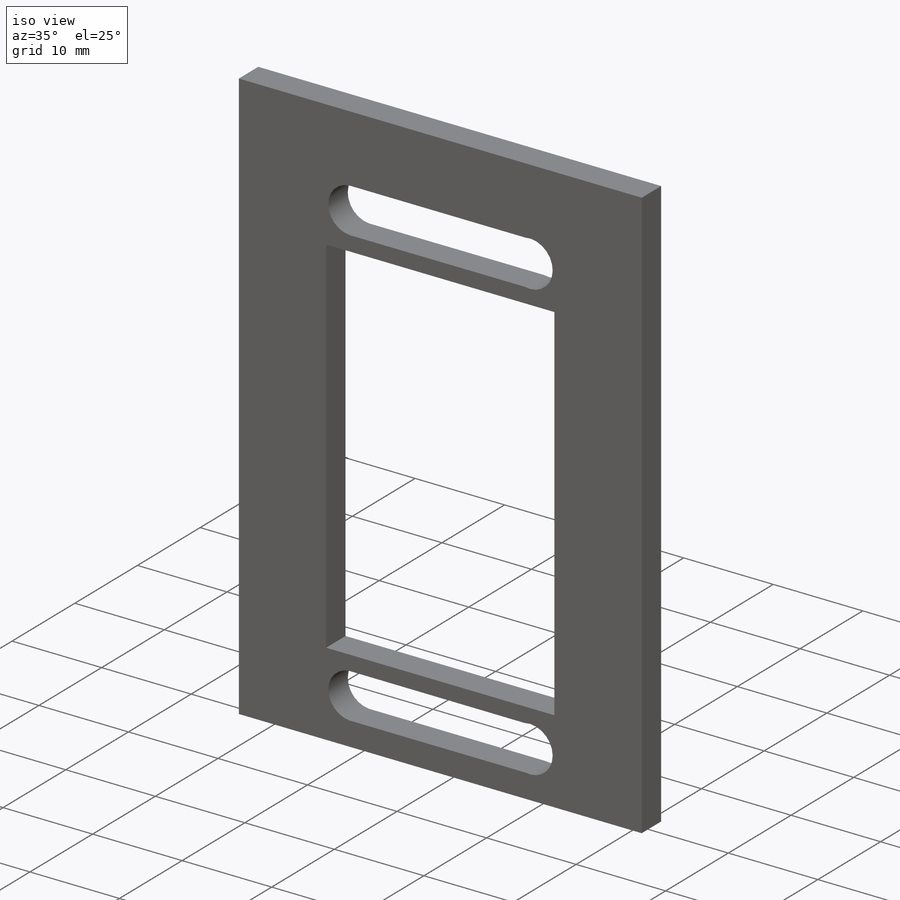
[diagram: iso view]
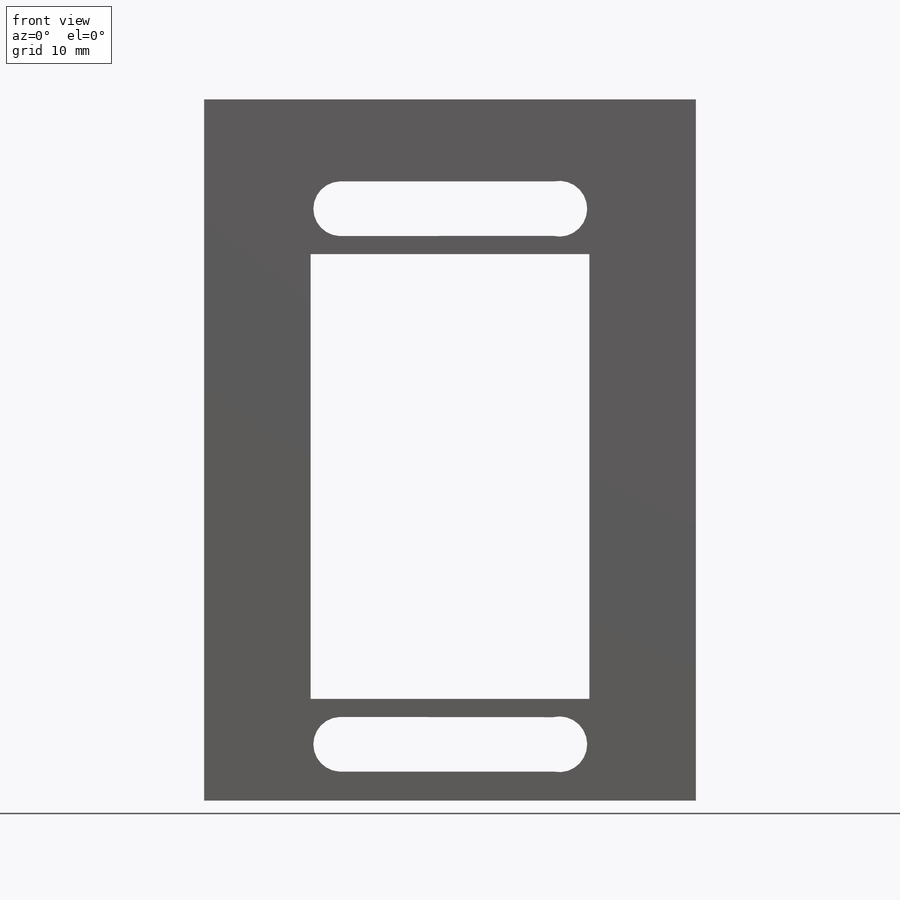
[diagram: front view]
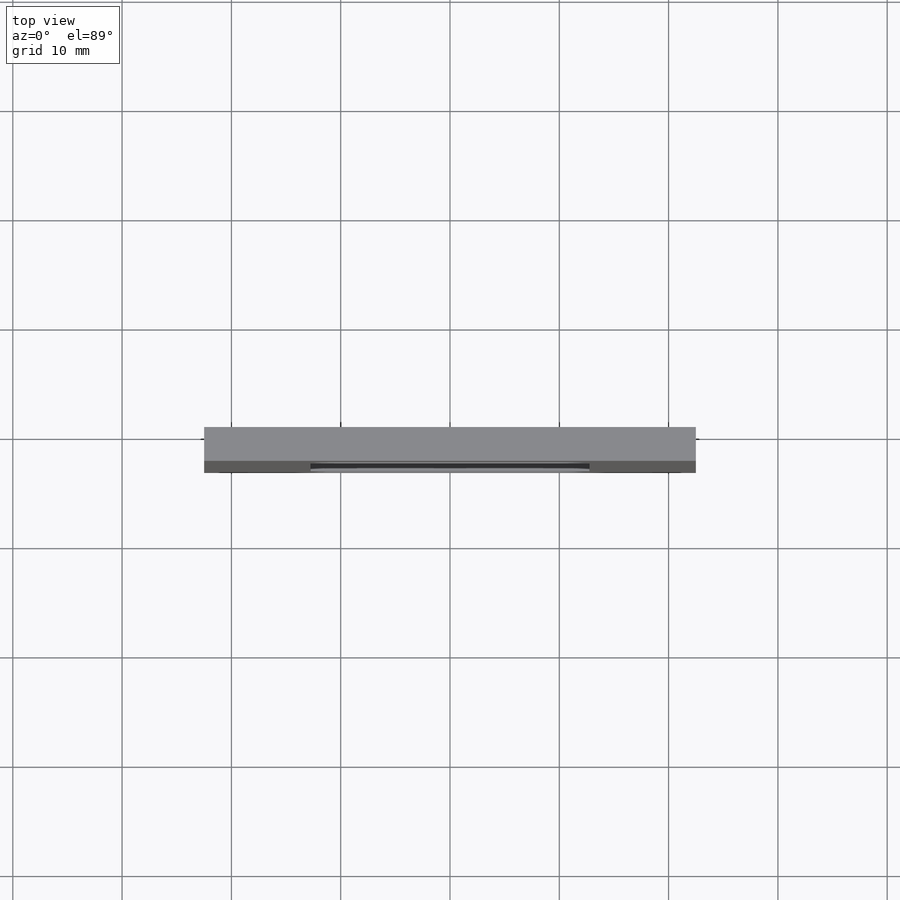
[diagram: top view]
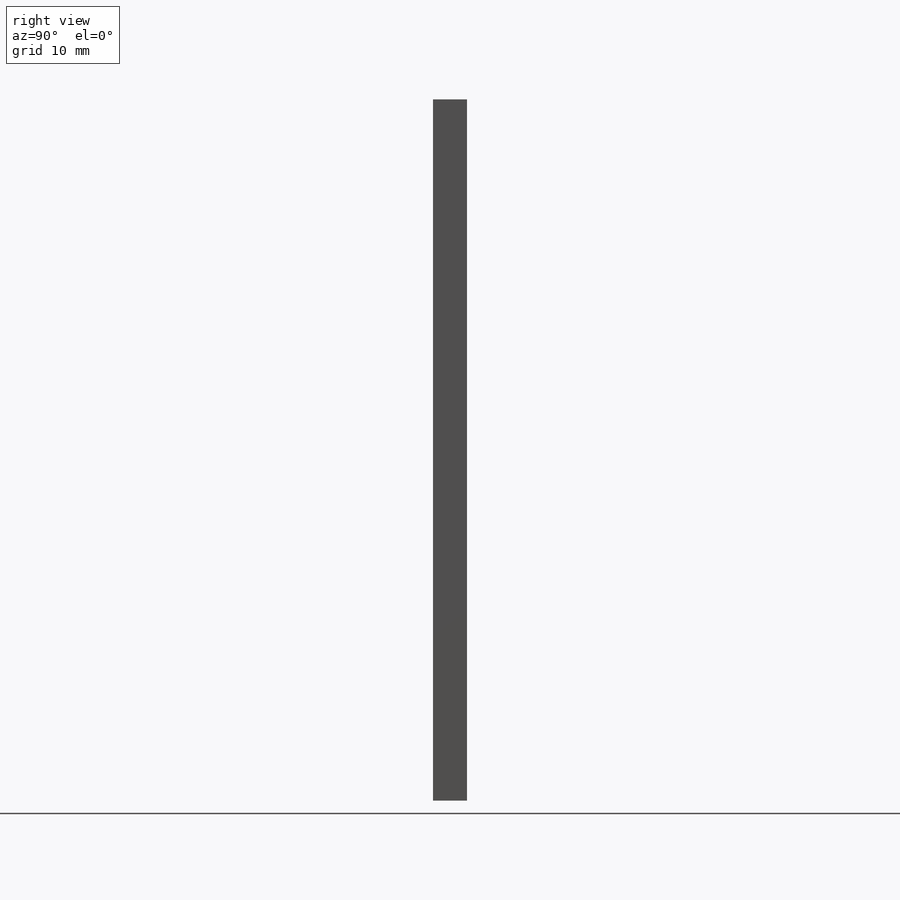
[diagram: right view]
SOLIDWORKS PART (.sldprt)
format: sldprt  version: not decoded by parser v0  size: 598,528 bytes
history: native  units: mm
features: sketch x5, extrude x2, cut_extrude x2, material x1 (+13 scaffold rows collapsed)
feature tree (23):
  scaffold x13  (default folders/planes/origin — collapsed)
  material  "Teak"
  sketch  "Sketch1"  dims[c1.D4=2.5mm c1.D1=40.7mm c1.D2=50.0mm c1.D3=10.0mm c2.D4=~26.088437mm c3.D4=~0.918749deg c4.D4=~13.044219mm c5.D4=~0.918749deg c6.D4=~13.044219mm c6.D5=30.0mm c6.D6=49.0mm c6.D7=45.0mm c6.D8=80.0mm c6.D9=10.35mm c6.D1=10.0mm c6.D2=40.7mm c6.D3=25.5mm c7.D4=49.0mm c7.D5=20.0mm c7.D6=0.0mm]
  extrude  "Boss-Extrude1"  Depth=3.1mm
  sketch  "Sketch6"
  extrude  "Boss-Extrude3"  Depth=3.1mm
  sketch  "Sketch7"  dims[c1.D4=2.5mm c1.D1=5.0mm c1.D5=19.05mm c1.D2=2.0mm c1.D6=2.0mm c2.D1=40.7mm c2.D2=50.0mm c2.D3=10.0mm c2.D4=~26.088437mm c3.D4=~0.918749deg c4.D4=~13.044219mm c5.D4=~0.918749deg c6.D4=~13.044219mm c6.D5=30.0mm c6.D6=49.0mm c6.D7=80.0mm c6.D8=80.0mm c6.D3=38.1mm c7.D4=0.0mm c7.D1=~26.940768mm c7.D3=0.0mm c7.D2=5.0mm]
  cut_extrude  "Cut-Extrude3"  [1 undecoded]
  sketch  "Sketch8"  dims[D1=7.5mm]
  cut_extrude  "Cut-Extrude4"  [1 undecoded]
  sketch  "Sketch10"  dims[D1=3.1mm D2=5.0mm D3=3.1mm D4=5.0mm D5=0.0mm]
decode coverage: 6 of 9 modeling features carry decoded parameters
note: ~ marks probable driven/reference dimensions
note: 2 parameter values undecoded
note: suppression state not decoded; provenance and decode notes live in map.json
